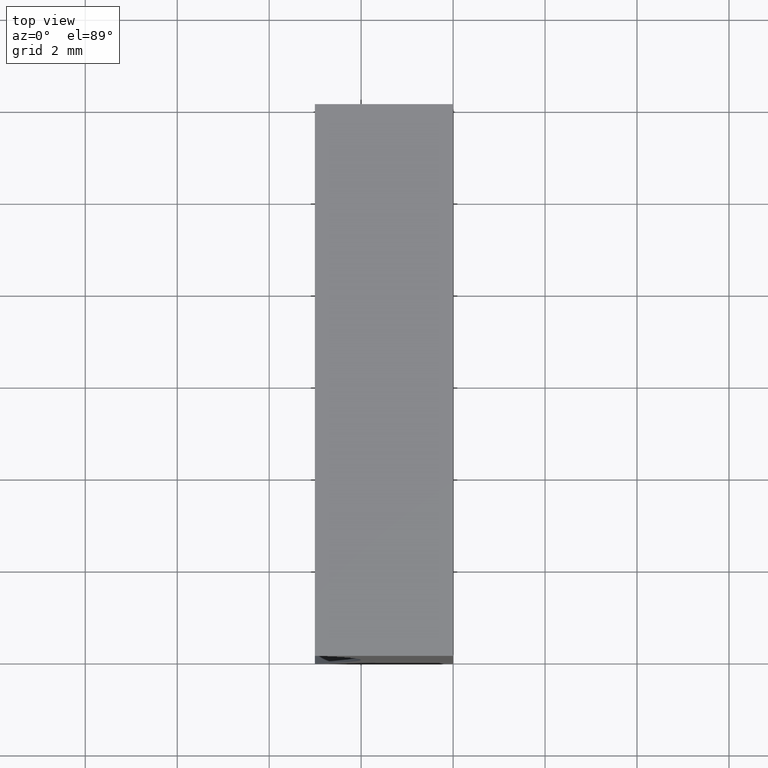
[diagram: clean part render]
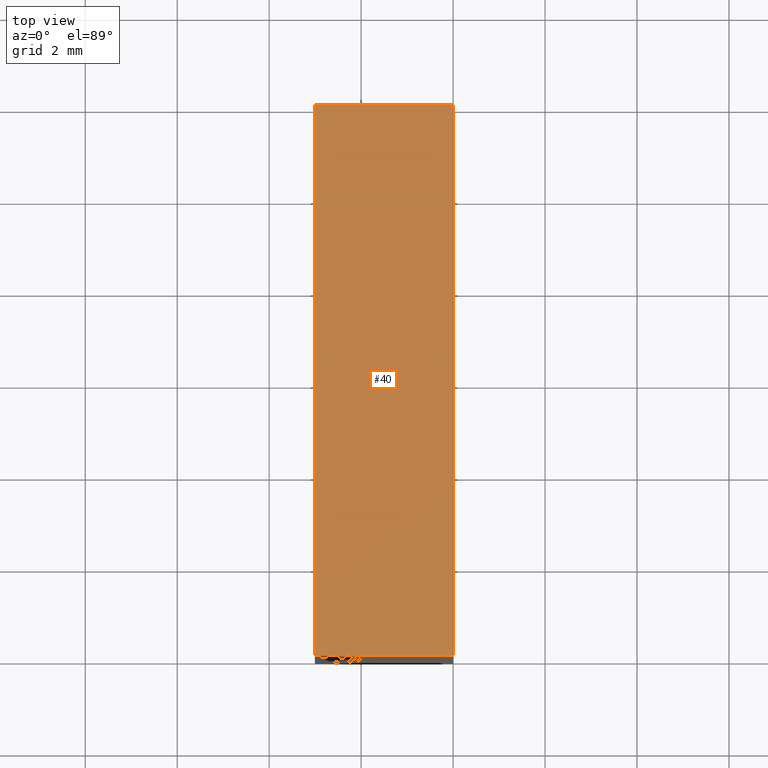
[diagram: same view with one face highlighted and labeled with its STEP entity id]
A machine part, top view. The second image highlights one B-rep face of the part: STEP entity #40.
In plain terms, the highlighted planar face has unit normal (0, 0, -1).
Its self-contained STEP definition (entity closure, byte-faithful):
#1 = LINE ( 'NONE', #194, #73 ) ;
#29 = DIRECTION ( 'NONE',  ( 5.771121341056381500E-016, 0.0000000000000000000, -1.000000000000000000 ) ) ;
#32 = CARTESIAN_POINT ( 'NONE',  ( -3.005869004409587500, 0.0000000000000000000, 9.999999999999998200 ) ) ;
#35 = ORIENTED_EDGE ( 'NONE', *, *, #149, .F. ) ;
#40 = ADVANCED_FACE ( 'NONE', ( #165 ), #126, .F. ) ;
#42 = CARTESIAN_POINT ( 'NONE',  ( -3.005869004409587500, 12.00000000000000000, 9.999999999999998200 ) ) ;
#46 = VECTOR ( 'NONE', #94, 1000.000000000000000 ) ;
#50 = VECTOR ( 'NONE', #68, 1000.000000000000000 ) ;
#54 = VERTEX_POINT ( 'NONE', #198 ) ;
#61 = VERTEX_POINT ( 'NONE', #82 ) ;
#64 = EDGE_LOOP ( 'NONE', ( #130, #79, #35, #122 ) ) ;
#68 = DIRECTION ( 'NONE',  ( -0.0000000000000000000, -1.000000000000000000, -0.0000000000000000000 ) ) ;
#73 = VECTOR ( 'NONE', #157, 1000.000000000000000 ) ;
#78 = LINE ( 'NONE', #42, #46 ) ;
#79 = ORIENTED_EDGE ( 'NONE', *, *, #184, .F. ) ;
#82 = CARTESIAN_POINT ( 'NONE',  ( 6.123233995736766300E-016, 12.00000000000000000, 10.00000000000000000 ) ) ;
#94 = DIRECTION ( 'NONE',  ( -0.0000000000000000000, -1.000000000000000000, -0.0000000000000000000 ) ) ;
#99 = DIRECTION ( 'NONE',  ( 1.000000000000000000, -0.0000000000000000000, 5.771121341056381500E-016 ) ) ;
#103 = VERTEX_POINT ( 'NONE', #158 ) ;
#108 = DIRECTION ( 'NONE',  ( -1.000000000000000000, 0.0000000000000000000, -5.771121341056381500E-016 ) ) ;
#111 = CARTESIAN_POINT ( 'NONE',  ( 6.123233995736766300E-016, 0.0000000000000000000, 10.00000000000000000 ) ) ;
#113 = LINE ( 'NONE', #111, #204 ) ;
#122 = ORIENTED_EDGE ( 'NONE', *, *, #190, .T. ) ;
#126 = PLANE ( 'NONE',  #131 ) ;
#130 = ORIENTED_EDGE ( 'NONE', *, *, #152, .T. ) ;
#131 = AXIS2_PLACEMENT_3D ( 'NONE', #162, #29, #108 ) ;
#149 = EDGE_CURVE ( 'NONE', #54, #61, #1, .T. ) ;
#152 = EDGE_CURVE ( 'NONE', #154, #103, #113, .T. ) ;
#154 = VERTEX_POINT ( 'NONE', #32 ) ;
#157 = DIRECTION ( 'NONE',  ( 1.000000000000000000, -0.0000000000000000000, 5.771121341056381500E-016 ) ) ;
#158 = CARTESIAN_POINT ( 'NONE',  ( 6.123233995736766300E-016, 0.0000000000000000000, 10.00000000000000000 ) ) ;
#162 = CARTESIAN_POINT ( 'NONE',  ( 6.123233995736766300E-016, 12.00000000000000000, 10.00000000000000000 ) ) ;
#165 = FACE_OUTER_BOUND ( 'NONE', #64, .T. ) ;
#167 = LINE ( 'NONE', #183, #50 ) ;
#183 = CARTESIAN_POINT ( 'NONE',  ( 6.123233995736766300E-016, 12.00000000000000000, 10.00000000000000000 ) ) ;
#184 = EDGE_CURVE ( 'NONE', #61, #103, #167, .T. ) ;
#190 = EDGE_CURVE ( 'NONE', #54, #154, #78, .T. ) ;
#194 = CARTESIAN_POINT ( 'NONE',  ( 6.123233995736766300E-016, 12.00000000000000000, 10.00000000000000000 ) ) ;
#198 = CARTESIAN_POINT ( 'NONE',  ( -3.005869004409587500, 12.00000000000000000, 9.999999999999998200 ) ) ;
#204 = VECTOR ( 'NONE', #99, 1000.000000000000000 ) ;